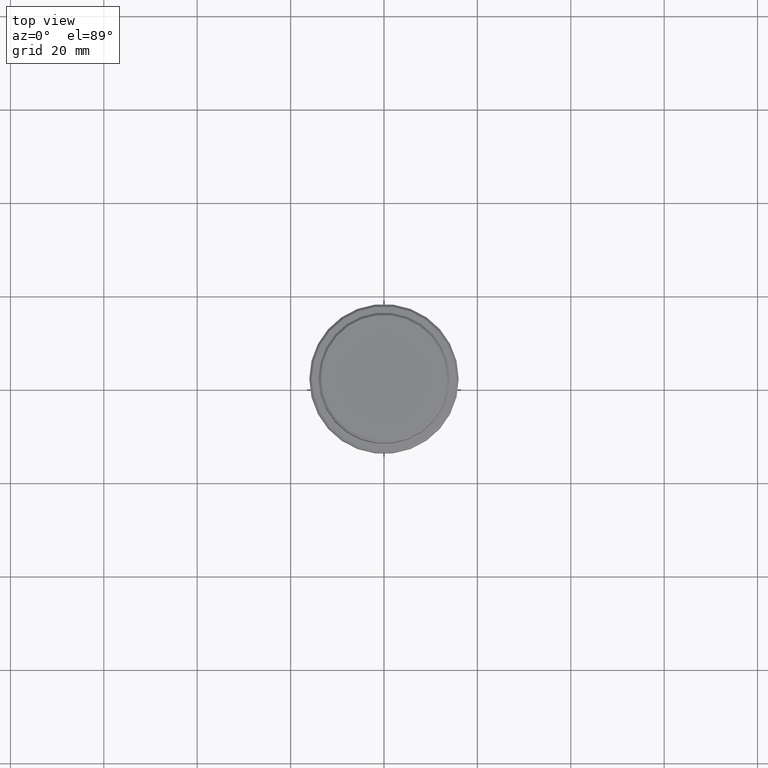
[diagram: clean part render]
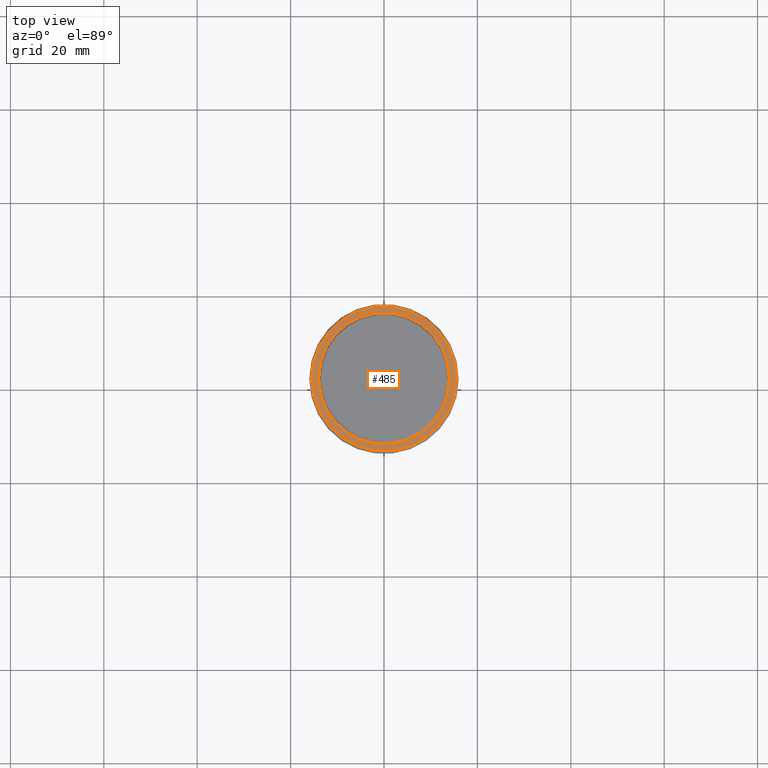
[diagram: same view with one face highlighted and labeled with its STEP entity id]
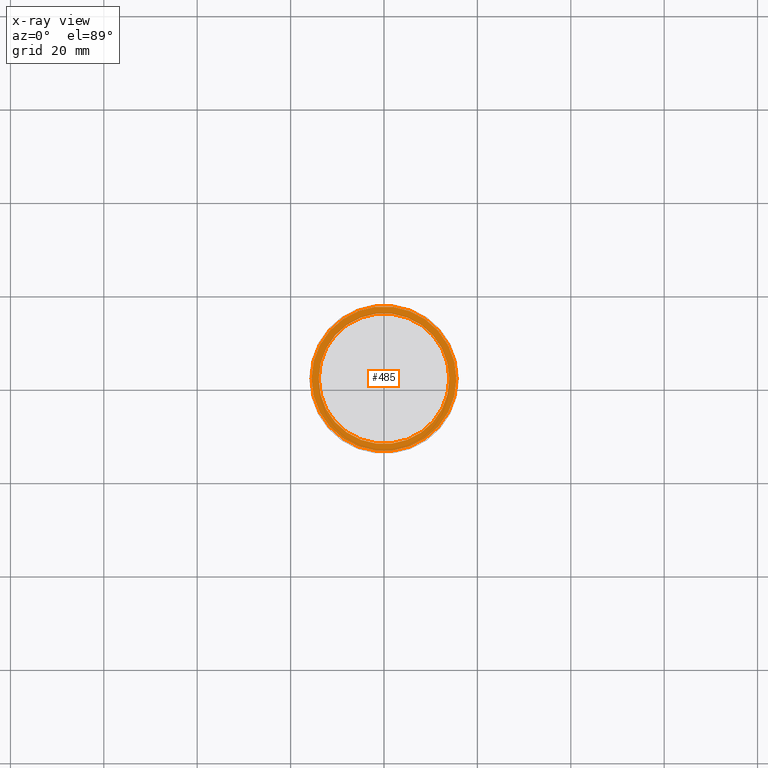
[diagram: x-ray of the same camera — body ghosted, the highlighted face saturated]
A machine part, top view. The second image highlights one B-rep face of the part: STEP entity #485.
The next image is the same camera in x-ray: the body ghosted, the highlighted face saturated — about 0% of this face is hidden behind the body in this view.
In plain terms, the highlighted planar face has unit normal (0, -0, 1).
Its self-contained STEP definition (entity closure, byte-faithful):
#2 = CARTESIAN_POINT ( 'NONE',  ( 0.000000000000000000, 0.000000000000000000, -9.999999999999998224 ) ) ;
#36 = DIRECTION ( 'NONE',  ( -0.000000000000000000, -0.000000000000000000, 1.000000000000000000 ) ) ;
#138 = CARTESIAN_POINT ( 'NONE',  ( -13.99999999999997868, 1.714505518806292074E-15, -9.999999999999998224 ) ) ;
#228 = VERTEX_POINT ( 'NONE', #965 ) ;
#239 = ORIENTED_EDGE ( 'NONE', *, *, #1380, .T. ) ;
#252 = FACE_OUTER_BOUND ( 'NONE', #1093, .T. ) ;
#273 = CARTESIAN_POINT ( 'NONE',  ( 0.000000000000000000, 0.000000000000000000, -9.999999999999998224 ) ) ;
#280 = CARTESIAN_POINT ( 'NONE',  ( 0.000000000000000000, 13.49999999999997868, -9.999999999999998224 ) ) ;
#283 = VERTEX_POINT ( 'NONE', #569 ) ;
#286 = AXIS2_PLACEMENT_3D ( 'NONE', #2, #444, #333 ) ;
#303 = AXIS2_PLACEMENT_3D ( 'NONE', #280, #706, #582 ) ;
#333 = DIRECTION ( 'NONE',  ( 1.000000000000000000, 0.000000000000000000, 0.000000000000000000 ) ) ;
#354 = CIRCLE ( 'NONE', #1395, 13.99999999999997868 ) ;
#361 = DIRECTION ( 'NONE',  ( 1.000000000000000000, 0.000000000000000000, 0.000000000000000000 ) ) ;
#444 = DIRECTION ( 'NONE',  ( 0.000000000000000000, 0.000000000000000000, -1.000000000000000000 ) ) ;
#450 = CARTESIAN_POINT ( 'NONE',  ( 0.000000000000000000, 0.000000000000000000, -9.999999999999998224 ) ) ;
#485 = ADVANCED_FACE ( 'NONE', ( #252, #1239 ), #595, .T. ) ;
#507 = CIRCLE ( 'NONE', #286, 13.99999999999997868 ) ;
#528 = AXIS2_PLACEMENT_3D ( 'NONE', #699, #1032, #900 ) ;
#529 = ORIENTED_EDGE ( 'NONE', *, *, #1164, .T. ) ;
#569 = CARTESIAN_POINT ( 'NONE',  ( 15.50000000000000000, 1.928818708657080556E-15, -9.999999999999998224 ) ) ;
#582 = DIRECTION ( 'NONE',  ( 1.000000000000000000, 0.000000000000000000, 0.000000000000000000 ) ) ;
#595 = PLANE ( 'NONE',  #303 ) ;
#597 = DIRECTION ( 'NONE',  ( 0.000000000000000000, 0.000000000000000000, -1.000000000000000000 ) ) ;
#656 = VERTEX_POINT ( 'NONE', #138 ) ;
#673 = VERTEX_POINT ( 'NONE', #893 ) ;
#699 = CARTESIAN_POINT ( 'NONE',  ( 0.000000000000000000, 0.000000000000000000, -9.999999999999998224 ) ) ;
#706 = DIRECTION ( 'NONE',  ( 0.000000000000000000, -0.000000000000000000, 1.000000000000000000 ) ) ;
#731 = CIRCLE ( 'NONE', #1065, 15.50000000000000000 ) ;
#803 = EDGE_CURVE ( 'NONE', #283, #673, #731, .T. ) ;
#893 = CARTESIAN_POINT ( 'NONE',  ( -15.50000000000000000, 0.000000000000000000, -9.999999999999998224 ) ) ;
#900 = DIRECTION ( 'NONE',  ( 1.000000000000000000, 0.000000000000000000, 0.000000000000000000 ) ) ;
#929 = ORIENTED_EDGE ( 'NONE', *, *, #803, .T. ) ;
#965 = CARTESIAN_POINT ( 'NONE',  ( 13.99999999999997868, 0.000000000000000000, -9.999999999999998224 ) ) ;
#1032 = DIRECTION ( 'NONE',  ( -0.000000000000000000, -0.000000000000000000, 1.000000000000000000 ) ) ;
#1043 = DIRECTION ( 'NONE',  ( 1.000000000000000000, 0.000000000000000000, 0.000000000000000000 ) ) ;
#1065 = AXIS2_PLACEMENT_3D ( 'NONE', #450, #36, #361 ) ;
#1093 = EDGE_LOOP ( 'NONE', ( #529, #929 ) ) ;
#1133 = EDGE_CURVE ( 'NONE', #656, #228, #354, .T. ) ;
#1161 = CIRCLE ( 'NONE', #528, 15.50000000000000000 ) ;
#1164 = EDGE_CURVE ( 'NONE', #673, #283, #1161, .T. ) ;
#1239 = FACE_BOUND ( 'NONE', #1291, .T. ) ;
#1291 = EDGE_LOOP ( 'NONE', ( #239, #1407 ) ) ;
#1380 = EDGE_CURVE ( 'NONE', #228, #656, #507, .T. ) ;
#1395 = AXIS2_PLACEMENT_3D ( 'NONE', #273, #597, #1043 ) ;
#1407 = ORIENTED_EDGE ( 'NONE', *, *, #1133, .T. ) ;